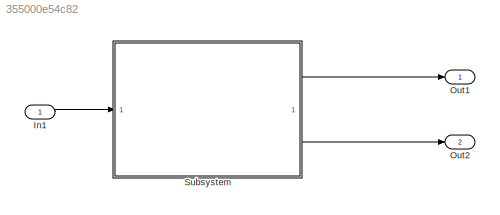
MODEL slx_355000e54c82
KIND model
CONFIG AbsTol = auto
CONFIG EnableMultiTasking = off
CONFIG FixedStep = auto
CONFIG MaxStep = auto
CONFIG MinStep = auto
CONFIG RelTol = 1e-3
CONFIG SampleTimeConstraint = Unconstrained
CONFIG SolverName = VariableStepAuto
CONFIG StartTime = 0.0
CONFIG StopTime = 10.0
BLOCK [Inport] In1
  OutDataTypeStr = uint16
  PortDimensions = 1
  SampleTime = 1
BLOCK [Outport] Out1
  SampleTime = 1
  VectorParamsAs1DForOutWhenUnconnected = off
BLOCK [Outport] Out2
  Port = 2
  SampleTime = 1
  VectorParamsAs1DForOutWhenUnconnected = off
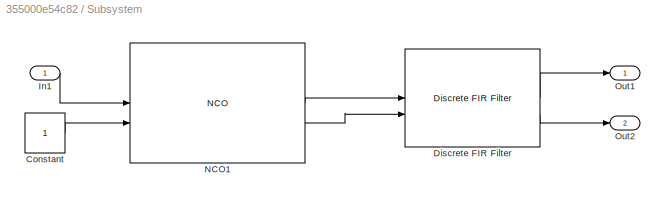
BLOCK [SubSystem] Subsystem
BLOCK [Constant] Subsystem/Constant
  OutDataTypeStr = boolean
  SampleTime = 1
  VectorParams1D = off
BLOCK [Reference] Subsystem/Discrete FIR Filter  REF=dsphdlfiltering2/Discrete FIR Filter
  SourceBlock = dsphdlfiltering2/Discrete FIR Filter
  SourceType = Discrete FIR Filter
BLOCK [Inport] Subsystem/In1
  OutDataTypeStr = uint16
  PortDimensions = 1
  SampleTime = 1
BLOCK [Reference] Subsystem/NCO1  REF=dsphdlsigops2/NCO
  SourceBlock = dsphdlsigops2/NCO
  SourceType = NCO
BLOCK [Outport] Subsystem/Out1
  SampleTime = 1
BLOCK [Outport] Subsystem/Out2
  Port = 2
  SampleTime = 1
LINE In1:1 -> Subsystem:1
LINE Subsystem/Constant:1 -> Subsystem/NCO1:2
LINE Subsystem/Discrete FIR Filter:1 -> Subsystem/Out1:1
LINE Subsystem/Discrete FIR Filter:2 -> Subsystem/Out2:1
LINE Subsystem/In1:1 -> Subsystem/NCO1:1
LINE Subsystem/NCO1:1 -> Subsystem/Discrete FIR Filter:1
LINE Subsystem/NCO1:2 -> Subsystem/Discrete FIR Filter:2
LINE Subsystem:1 -> Out1:1
LINE Subsystem:2 -> Out2:1
